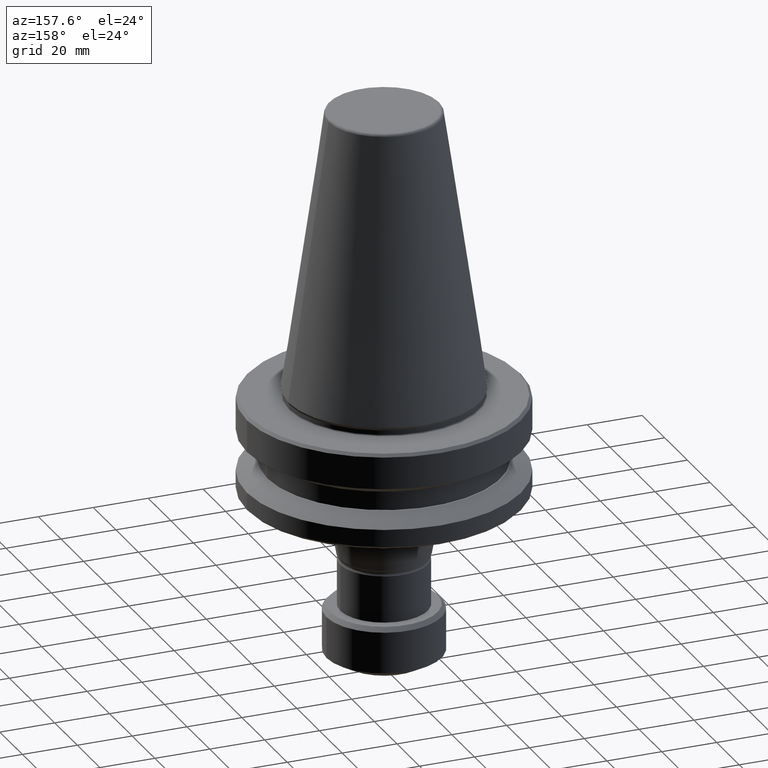
[diagram: clean part render]
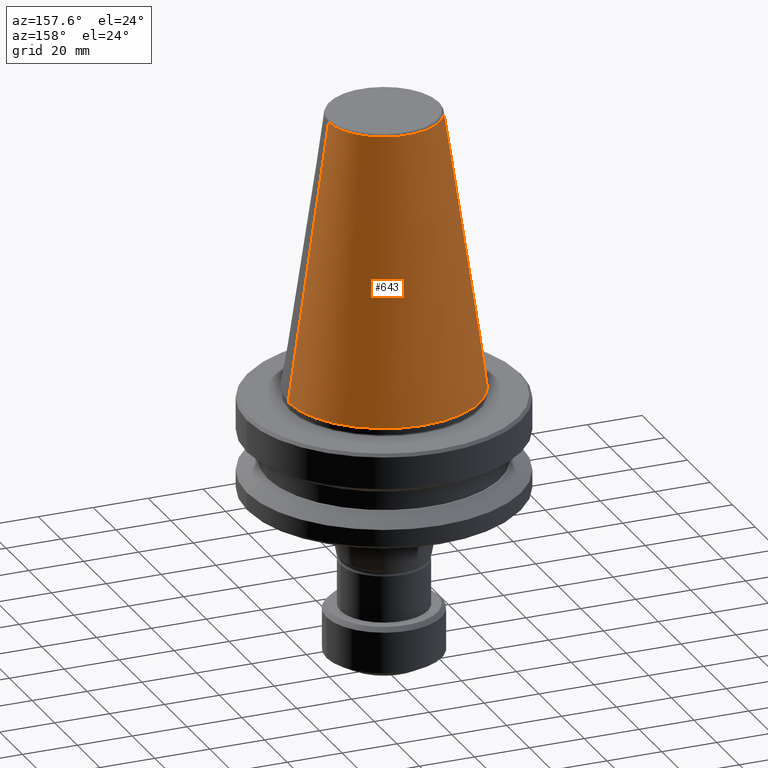
[diagram: same view with one face highlighted and labeled with its STEP entity id]
A machine part, auxiliary view. The second image highlights one B-rep face of the part: STEP entity #643.
In plain terms, the highlighted conical surface has half-angle 8.297 deg.
Its self-contained STEP definition (entity closure, byte-faithful):
#28 = DIRECTION ( 'NONE',  ( 1.000000000000000000, 0.0000000000000000000, 0.0000000000000000000 ) ) ;
#65 = AXIS2_PLACEMENT_3D ( 'NONE', #278, #904, #698 ) ;
#141 = AXIS2_PLACEMENT_3D ( 'NONE', #1275, #649, #1386 ) ;
#171 = VERTEX_POINT ( 'NONE', #1155 ) ;
#213 = CARTESIAN_POINT ( 'NONE',  ( -34.92499999999964900, 4.277078946022089100E-015, 0.0000000000000000000 ) ) ;
#278 = CARTESIAN_POINT ( 'NONE',  ( 0.0000000000000000000, 0.0000000000000000000, 0.0000000000000000000 ) ) ;
#463 = CONICAL_SURFACE ( 'NONE', #65, 34.92499999999964900, 0.1448138426689066500 ) ;
#497 = EDGE_LOOP ( 'NONE', ( #1180, #526, #1041, #976 ) ) ;
#501 = LINE ( 'NONE', #886, #1032 ) ;
#526 = ORIENTED_EDGE ( 'NONE', *, *, #727, .T. ) ;
#643 = ADVANCED_FACE ( 'NONE', ( #1097 ), #463, .T. ) ;
#649 = DIRECTION ( 'NONE',  ( -0.0000000000000000000, -0.0000000000000000000, 1.000000000000000000 ) ) ;
#674 = DIRECTION ( 'NONE',  ( -0.0000000000000000000, -0.0000000000000000000, 1.000000000000000000 ) ) ;
#698 = DIRECTION ( 'NONE',  ( -1.000000000000000000, 0.0000000000000000000, 0.0000000000000000000 ) ) ;
#716 = VERTEX_POINT ( 'NONE', #1130 ) ;
#727 = EDGE_CURVE ( 'NONE', #716, #171, #1183, .T. ) ;
#883 = VERTEX_POINT ( 'NONE', #213 ) ;
#886 = CARTESIAN_POINT ( 'NONE',  ( -34.92499999999964900, 0.0000000000000000000, 0.0000000000000000000 ) ) ;
#900 = VECTOR ( 'NONE', #918, 999.9999999999998900 ) ;
#904 = DIRECTION ( 'NONE',  ( 0.0000000000000000000, 0.0000000000000000000, -1.000000000000000000 ) ) ;
#916 = EDGE_CURVE ( 'NONE', #716, #1071, #1269, .T. ) ;
#918 = DIRECTION ( 'NONE',  ( 0.1443082234293918100, 1.767266039134457800E-017, -0.9895327870518757500 ) ) ;
#976 = ORIENTED_EDGE ( 'NONE', *, *, #1073, .F. ) ;
#990 = CARTESIAN_POINT ( 'NONE',  ( -20.20381645192159700, 0.0000000000000000000, 100.9443082234283700 ) ) ;
#1028 = CARTESIAN_POINT ( 'NONE',  ( 34.92499999999964900, 4.277078946022088300E-015, 0.0000000000000000000 ) ) ;
#1032 = VECTOR ( 'NONE', #1202, 999.9999999999998900 ) ;
#1041 = ORIENTED_EDGE ( 'NONE', *, *, #1060, .T. ) ;
#1060 = EDGE_CURVE ( 'NONE', #171, #883, #1103, .T. ) ;
#1071 = VERTEX_POINT ( 'NONE', #990 ) ;
#1073 = EDGE_CURVE ( 'NONE', #1071, #883, #501, .T. ) ;
#1097 = FACE_OUTER_BOUND ( 'NONE', #497, .T. ) ;
#1103 = CIRCLE ( 'NONE', #1199, 34.92499999999964900 ) ;
#1130 = CARTESIAN_POINT ( 'NONE',  ( 20.20381645192159700, 3.375666430431365100E-015, 100.9443082234283700 ) ) ;
#1155 = CARTESIAN_POINT ( 'NONE',  ( 34.92499999999964900, 0.0000000000000000000, 0.0000000000000000000 ) ) ;
#1180 = ORIENTED_EDGE ( 'NONE', *, *, #916, .F. ) ;
#1183 = LINE ( 'NONE', #1028, #900 ) ;
#1199 = AXIS2_PLACEMENT_3D ( 'NONE', #1305, #674, #28 ) ;
#1202 = DIRECTION ( 'NONE',  ( -0.1443082234293918100, 0.0000000000000000000, -0.9895327870518757500 ) ) ;
#1269 = CIRCLE ( 'NONE', #141, 20.20381645192159700 ) ;
#1275 = CARTESIAN_POINT ( 'NONE',  ( 0.0000000000000000000, 0.0000000000000000000, 100.9443082234283700 ) ) ;
#1305 = CARTESIAN_POINT ( 'NONE',  ( 0.0000000000000000000, 0.0000000000000000000, 0.0000000000000000000 ) ) ;
#1386 = DIRECTION ( 'NONE',  ( 1.000000000000000000, 0.0000000000000000000, 0.0000000000000000000 ) ) ;